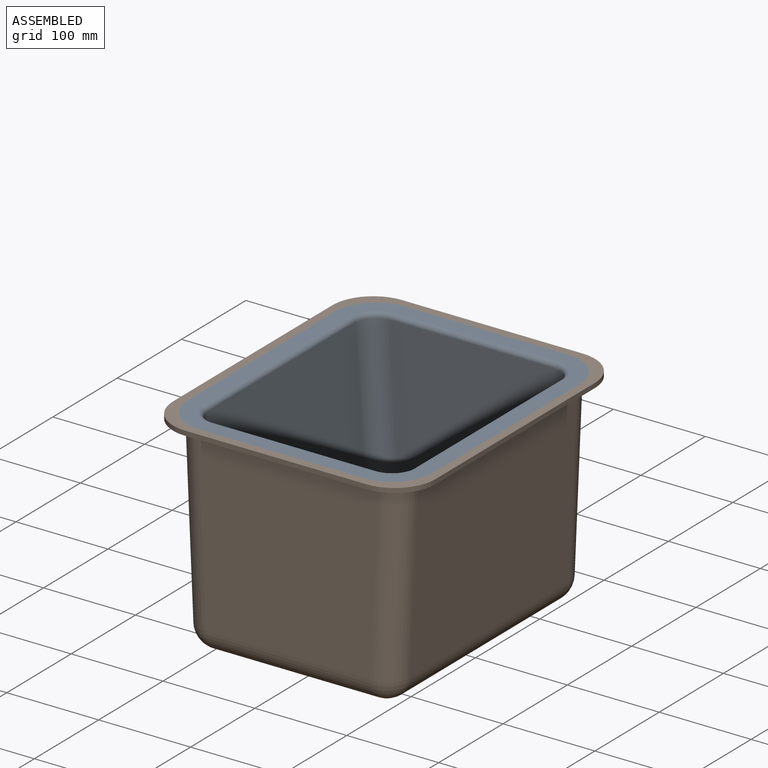
[diagram: assembled view]
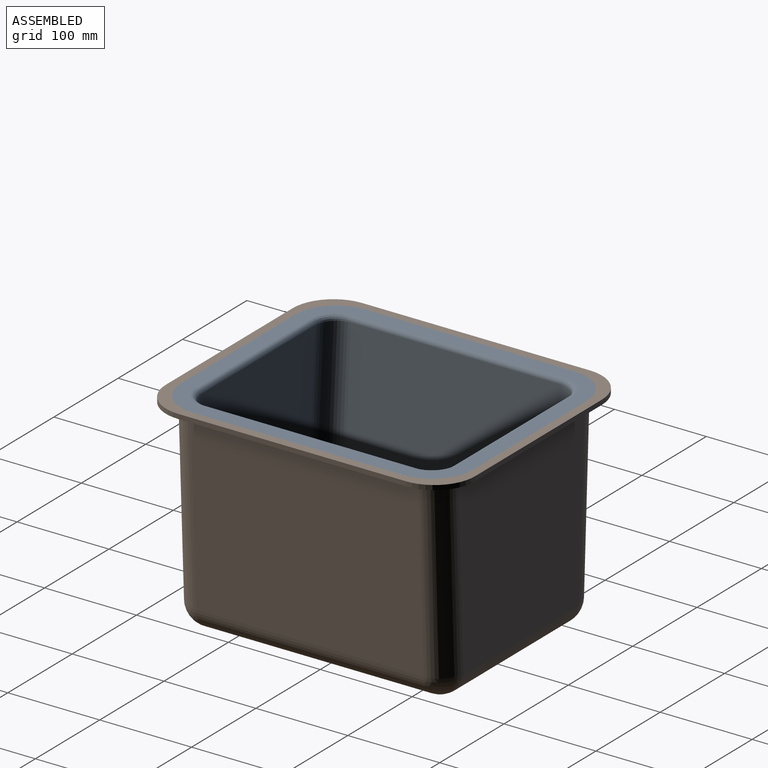
[diagram: assembled view, second angle]
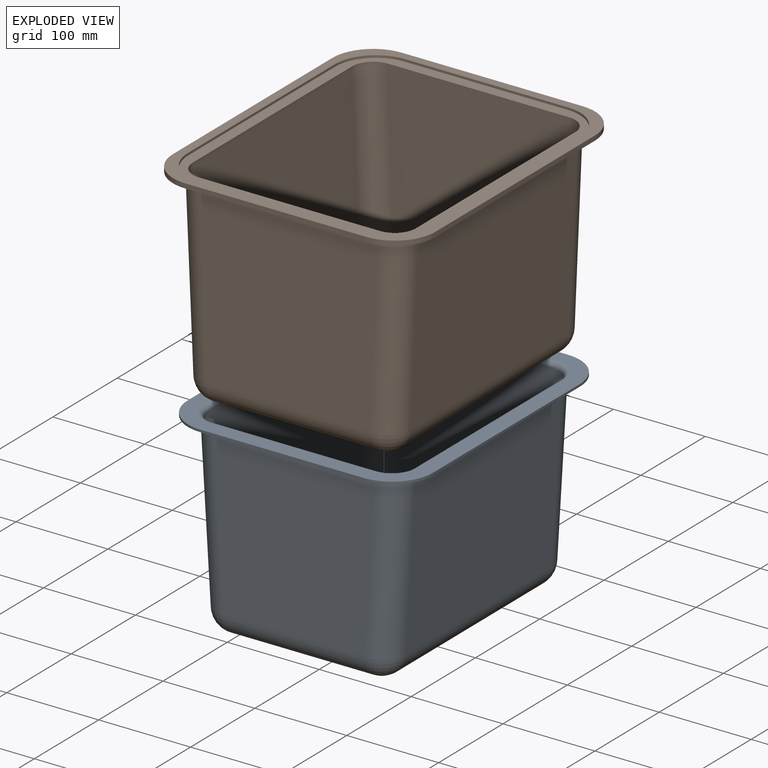
[diagram: exploded view]
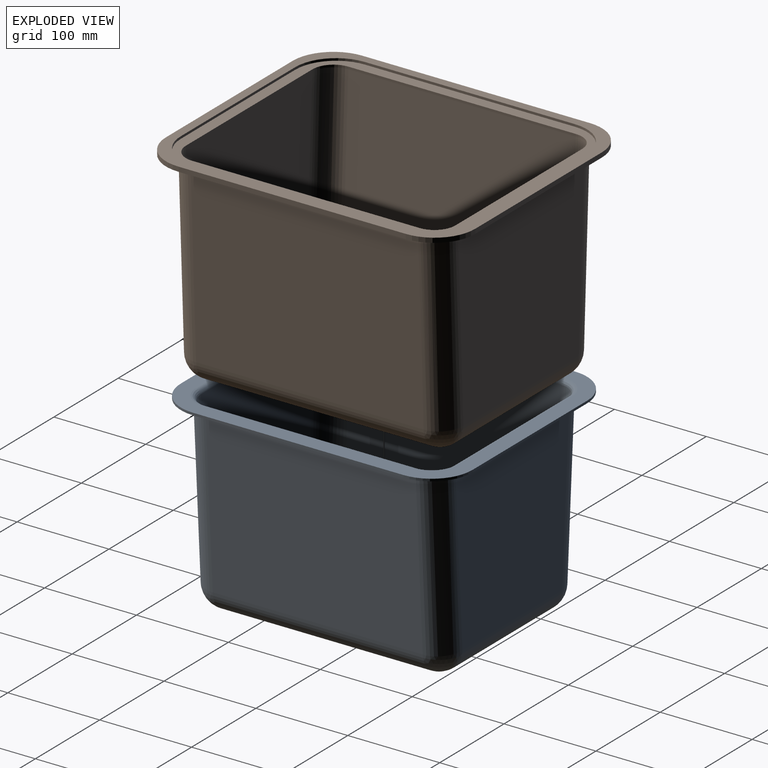
[diagram: exploded view, second angle]
ASSEMBLY  parts=2 mates=3
PART A: 52 faces, bbox 266.6x317.5x212.1 mm
  f0: plane 228.6x183.32mm, normal (1,0,0.06), area 41984.3mm2, adj f10,f13,f16,f47
  f1: plane 228.6x155.18mm, normal (0,0,1), area 35473.9mm2, adj f6,f11,f12,f16
  f2: plane 228.6x183.32mm, normal (-1,0,0.06), area 41984.3mm2, adj f5,f6,f7,f48
  f3: plane 181.61x177.39mm, normal (0,1,0), area 30199.3mm2, adj f5,f10,f11,f44
  f4: plane 181.61x177.39mm, normal (0,-1,0), area 30199.3mm2, adj f7,f12,f13,f51
  f5: cylinder r=22.86mm len=184.71mm, axis (-0.06,0,-1), area 6572.6mm2, adj f2,f3,f8,f46
  f6: cylinder r=22.86mm len=228.6mm, axis (0,1,0), area 7889.4mm2, adj f1,f2,f8,f9
  f7: cylinder r=22.86mm len=184.71mm, axis (0.06,0,1), area 6572.6mm2, adj f2,f4,f9,f50
  f8: sphere r=22.86mm, area 788.9mm2, adj f5,f6,f11
  f9: sphere r=22.86mm, area 788.9mm2, adj f6,f7,f12
  f10: cylinder r=22.86mm len=184.71mm, axis (-0.06,0,1), area 6572.6mm2, adj f0,f3,f14,f45
  f11: cylinder r=22.86mm len=155.18mm, axis (-1,0,0), area 5572.2mm2, adj f1,f3,f8,f14
  f12: cylinder r=22.86mm len=155.18mm, axis (1,0,0), area 5572.2mm2, adj f1,f4,f9,f15
  f13: cylinder r=22.86mm len=184.71mm, axis (0.06,0,-1), area 6572.6mm2, adj f0,f4,f15,f49
  f14: sphere r=22.86mm, area 788.9mm2, adj f10,f11,f16
  f15: sphere r=22.86mm, area 788.9mm2, adj f12,f13,f16
  f16: cylinder r=22.86mm len=228.6mm, axis (0,1,0), area 7889.4mm2, adj f0,f1,f14,f15
  f17: plane 317.5x266.61mm, normal (0,0,-1), area 19635.1mm2, adj f18,f19,f20,f21,f22,f23,f24,f25
  f18: cylinder r=44.45mm len=44.45mm, axis (0,0,-1), area 177.3mm2, adj f17,f19,f25,f26
  f19: plane 177.71x2.54mm, normal (0,-1,0), area 451.4mm2, adj f17,f18,f20,f26
  f20: cylinder r=44.45mm len=44.45mm, axis (0,0,-1), area 177.3mm2, adj f17,f19,f21,f26
  f21: plane 228.6x2.54mm, normal (1,0,0), area 580.6mm2, adj f17,f20,f22,f26
  f22: cylinder r=44.45mm len=44.45mm, axis (0,0,-1), area 177.3mm2, adj f17,f21,f23,f26
  f23: plane 177.71x2.54mm, normal (0,1,0), area 451.4mm2, adj f17,f22,f24,f26
  f24: cylinder r=44.45mm len=44.45mm, axis (0,0,-1), area 177.3mm2, adj f17,f23,f25,f26
  f25: plane 228.6x2.54mm, normal (-1,0,0), area 580.6mm2, adj f17,f18,f24,f26
  f26: plane 317.5x266.61mm, normal (0,0,1), area 17230.8mm2, adj f18,f19,f20,f21,f22,f23,f24,f25
  f27: plane 228.6x155.18mm, normal (0,0,-1), area 35473.9mm2, adj f28,f30,f32,f34
  f28: cylinder r=25.4mm len=155.18mm, axis (1,0,0), area 6191.4mm2, adj f27,f29,f35,f43
  f29: sphere r=25.4mm, area 974mm2, adj f28,f30,f42
  f30: cylinder r=25.4mm len=228.6mm, axis (0,1,0), area 8766mm2, adj f27,f29,f31,f41
  f31: sphere r=25.4mm, area 974mm2, adj f30,f32,f40
  f32: cylinder r=25.4mm len=155.18mm, axis (-1,0,0), area 6191.4mm2, adj f27,f31,f33,f39
  f33: sphere r=25.4mm, area 974mm2, adj f32,f34,f38
  f34: cylinder r=25.4mm len=228.6mm, axis (0,1,0), area 8766mm2, adj f27,f33,f35,f37
  f35: sphere r=25.4mm, area 974mm2, adj f28,f34,f36
  f36: cylinder r=25.4mm len=187.25mm, axis (0.06,0,1), area 7400.4mm2, adj f17,f35,f37,f43
  f37: plane 228.6x185.7mm, normal (1,0,-0.06), area 42530.5mm2, adj f17,f34,f36,f38
  f38: cylinder r=25.4mm len=187.25mm, axis (-0.06,0,-1), area 7400.4mm2, adj f17,f33,f37,f39
  f39: plane 184.15x177.71mm, normal (0,-1,0), area 30650.3mm2, adj f17,f32,f38,f40
  f40: cylinder r=25.4mm len=187.25mm, axis (-0.06,0,1), area 7400.4mm2, adj f17,f31,f39,f41
  f41: plane 228.6x185.7mm, normal (-1,0,-0.06), area 42530.5mm2, adj f17,f30,f40,f42
  f42: cylinder r=25.4mm len=187.25mm, axis (0.06,0,-1), area 7400.4mm2, adj f17,f29,f41,f43
  f43: plane 184.15x177.71mm, normal (0,1,0), area 30650.3mm2, adj f17,f28,f36,f42
  f44: cylinder r=5.08mm len=177.39mm, axis (-1,0,0), area 1415.5mm2, adj f3,f26,f45,f46
  f45: bspline ~32.86x27.94mm, area 302.9mm2, adj f10,f26,f44,f47
  f46: bspline ~32.86x29.16mm, area 302.9mm2, adj f5,f26,f44,f48
  f47: cylinder r=5.08mm len=228.6mm, axis (0,-1,0), area 1753.2mm2, adj f0,f26,f45,f49
  f48: cylinder r=5.08mm len=228.6mm, axis (0,-1,0), area 1753.2mm2, adj f2,f26,f46,f50
  f49: bspline ~32.86x29.16mm, area 302.9mm2, adj f13,f26,f47,f51
  f50: bspline ~32.86x27.94mm, area 302.9mm2, adj f7,f26,f48,f51
  f51: cylinder r=5.08mm len=177.39mm, axis (1,0,0), area 1415.5mm2, adj f4,f26,f49,f50
PART B: 67 faces, bbox 285.7x336.6x227.3 mm
  f0: plane 336.55x285.7mm, normal (0,0,-1), area 15826.2mm2, adj f1,f2,f3,f4,f5,f6,f7,f8
  f1: cylinder r=44.45mm len=44.45mm, axis (0,0,-1), area 354.7mm2, adj f0,f2,f8,f9
  f2: plane 196.8x5.08mm, normal (0,-1,0), area 999.8mm2, adj f0,f1,f3,f9
  f3: cylinder r=44.45mm len=44.45mm, axis (0,0,-1), area 354.7mm2, adj f0,f2,f4,f9
  f4: plane 247.65x5.08mm, normal (1,0,0), area 1258.1mm2, adj f0,f3,f5,f9
  f5: cylinder r=44.45mm len=44.45mm, axis (0,0,-1), area 354.7mm2, adj f0,f4,f6,f9
  f6: plane 196.8x5.08mm, normal (0,1,0), area 999.8mm2, adj f0,f5,f7,f9
  f7: cylinder r=44.45mm len=44.45mm, axis (0,0,-1), area 354.7mm2, adj f0,f6,f8,f9
  f8: plane 247.65x5.08mm, normal (-1,0,0), area 1258.1mm2, adj f0,f1,f7,f9
  f9: plane 336.55x285.7mm, normal (0,0,1), area 11507.9mm2, adj f1,f2,f3,f4,f5,f6,f7,f8
  f10: plane 247.65x179.61mm, normal (0,0,-1), area 44481mm2, adj f11,f13,f15,f17
  f11: cylinder r=25.4mm len=179.61mm, axis (1,0,0), area 7166.2mm2, adj f10,f12,f18,f26
  f12: sphere r=25.4mm, area 985.3mm2, adj f11,f13,f25
  f13: cylinder r=25.4mm len=247.65mm, axis (0,1,0), area 9606.3mm2, adj f10,f12,f14,f24
  f14: sphere r=25.4mm, area 985.3mm2, adj f13,f15,f23
  f15: cylinder r=25.4mm len=179.61mm, axis (-1,0,0), area 7166.2mm2, adj f10,f14,f16,f22
  f16: sphere r=25.4mm, area 985.3mm2, adj f15,f17,f21
  f17: cylinder r=25.4mm len=247.65mm, axis (0,1,0), area 9606.3mm2, adj f10,f16,f18,f20
  f18: sphere r=25.4mm, area 985.3mm2, adj f11,f17,f19
  f19: cylinder r=25.4mm len=194.21mm, axis (0.04,0,1), area 7692.4mm2, adj f18,f20,f26,f65
  f20: plane 247.65x193.1mm, normal (1,0,-0.04), area 47866.7mm2, adj f17,f19,f21,f66
  f21: cylinder r=25.4mm len=194.21mm, axis (-0.04,0,-1), area 7692.4mm2, adj f16,f20,f22,f64
  f22: plane 196.36x191.77mm, normal (0,-1,0), area 36049.9mm2, adj f15,f21,f23,f62
  f23: cylinder r=25.4mm len=194.21mm, axis (-0.04,0,1), area 7692.4mm2, adj f14,f22,f24,f60
  f24: plane 247.65x193.1mm, normal (-1,0,-0.04), area 47866.7mm2, adj f13,f23,f25,f59
  f25: cylinder r=25.4mm len=194.21mm, axis (0.04,0,-1), area 7692.4mm2, adj f12,f24,f26,f61
  f26: plane 196.36x191.77mm, normal (0,1,0), area 36049.9mm2, adj f11,f19,f25,f63
  f27: cylinder r=44.45mm len=44.45mm, axis (0,0,1), area 177.3mm2, adj f9,f28,f34,f35
  f28: plane 177.7x2.54mm, normal (0,1,0), area 451.4mm2, adj f9,f27,f29,f35
  f29: cylinder r=44.45mm len=44.45mm, axis (0,0,1), area 177.3mm2, adj f9,f28,f30,f35
  f30: plane 228.6x2.54mm, normal (-1,0,0), area 580.6mm2, adj f9,f29,f31,f35
  f31: cylinder r=44.45mm len=44.45mm, axis (0,0,1), area 177.3mm2, adj f9,f30,f32,f35
  f32: plane 177.7x2.54mm, normal (0,-1,0), area 451.4mm2, adj f9,f31,f33,f35
  f33: cylinder r=44.45mm len=44.45mm, axis (0,0,1), area 177.3mm2, adj f9,f32,f34,f35
  f34: plane 228.6x2.54mm, normal (1,0,0), area 580.6mm2, adj f9,f27,f33,f35
  f35: plane 317.5x266.6mm, normal (0,0,1), area 12236.6mm2, adj f27,f28,f29,f30,f31,f32,f33,f34
  f36: plane 247.65x179.61mm, normal (0,0,1), area 44481mm2, adj f39,f42,f43,f44
  f37: sphere r=22.86mm, area 798.1mm2, adj f42,f44,f45
  f38: sphere r=22.86mm, area 798.1mm2, adj f39,f44,f46
  f39: cylinder r=22.86mm len=247.65mm, axis (0,1,0), area 8645.7mm2, adj f36,f38,f40,f47
  f40: sphere r=22.86mm, area 798.1mm2, adj f39,f43,f48
  f41: sphere r=22.86mm, area 798.1mm2, adj f42,f43,f49
  f42: cylinder r=22.86mm len=247.65mm, axis (0,1,0), area 8645.7mm2, adj f36,f37,f41,f50
  f43: cylinder r=22.86mm len=179.61mm, axis (-1,0,0), area 6449.6mm2, adj f36,f40,f41,f58
  f44: cylinder r=22.86mm len=179.61mm, axis (1,0,0), area 6449.6mm2, adj f36,f37,f38,f57
  f45: cylinder r=22.86mm len=198.84mm, axis (0.04,0,-1), area 7098.1mm2, adj f37,f50,f53,f57
  f46: cylinder r=22.86mm len=198.84mm, axis (0.04,0,1), area 7098.1mm2, adj f38,f47,f56,f57
  f47: plane 247.65x197.85mm, normal (-1,0,0.04), area 49043.5mm2, adj f39,f46,f48,f55
  f48: cylinder r=22.86mm len=198.84mm, axis (-0.04,0,-1), area 7098.1mm2, adj f40,f47,f54,f58
  f49: cylinder r=22.86mm len=198.84mm, axis (-0.04,0,1), area 7098.1mm2, adj f41,f50,f52,f58
  f50: plane 247.65x197.85mm, normal (1,0,0.04), area 49043.5mm2, adj f42,f45,f49,f51
  f51: plane 247.65x2.54mm, normal (1,0,0), area 629mm2, adj f35,f50,f52,f53
  f52: extruded ~22.88x22.86mm, area 91.3mm2, adj f35,f49,f51,f58
  f53: extruded ~22.88x22.86mm, area 91.3mm2, adj f35,f45,f51,f57
  f54: extruded ~22.88x22.86mm, area 91.3mm2, adj f35,f48,f55,f58
  f55: plane 247.65x2.54mm, normal (-1,0,0), area 629mm2, adj f35,f47,f54,f56
  f56: extruded ~22.88x22.86mm, area 91.3mm2, adj f35,f46,f55,f57
  f57: plane 199.39x196.8mm, normal (0,-1,0), area 37548.4mm2, adj f35,f44,f45,f46,f53,f56
  f58: plane 199.39x196.8mm, normal (0,1,0), area 37548.4mm2, adj f35,f43,f48,f49,f52,f54
  f59: cylinder r=5.08mm len=247.65mm, axis (0,1,0), area 1921.3mm2, adj f0,f24,f60,f61
  f60: bspline ~35.81x30.48mm, area 336.1mm2, adj f0,f23,f59,f62
  f61: bspline ~35.81x31.81mm, area 336.1mm2, adj f0,f25,f59,f63
  f62: cylinder r=5.08mm len=196.36mm, axis (1,0,0), area 1566.9mm2, adj f0,f22,f60,f64
  f63: cylinder r=5.08mm len=196.36mm, axis (-1,0,0), area 1566.9mm2, adj f0,f26,f61,f65
  f64: bspline ~35.81x31.81mm, area 336.1mm2, adj f0,f21,f62,f66
  f65: bspline ~35.81x30.48mm, area 336.1mm2, adj f0,f19,f63,f66
  f66: cylinder r=5.08mm len=247.65mm, axis (0,1,0), area 1921.3mm2, adj f0,f20,f64,f65
PLACE A t=(0.62,-0.18,-2.07)mm fixed
PLACE B t=(0.63,-0.18,-10.96)mm
MATE planar B.f35 <-> A.f17  axis (0,0,1) through (0.63,-0.18,102.7)mm
MATE planar B.f30 <-> A.f21  axis (-1,0,0) through (133.93,-0.18,103.97)mm
MATE planar A.f19 <-> B.f28  axis (0,-1,0) through (0.62,-158.93,103.97)mm
